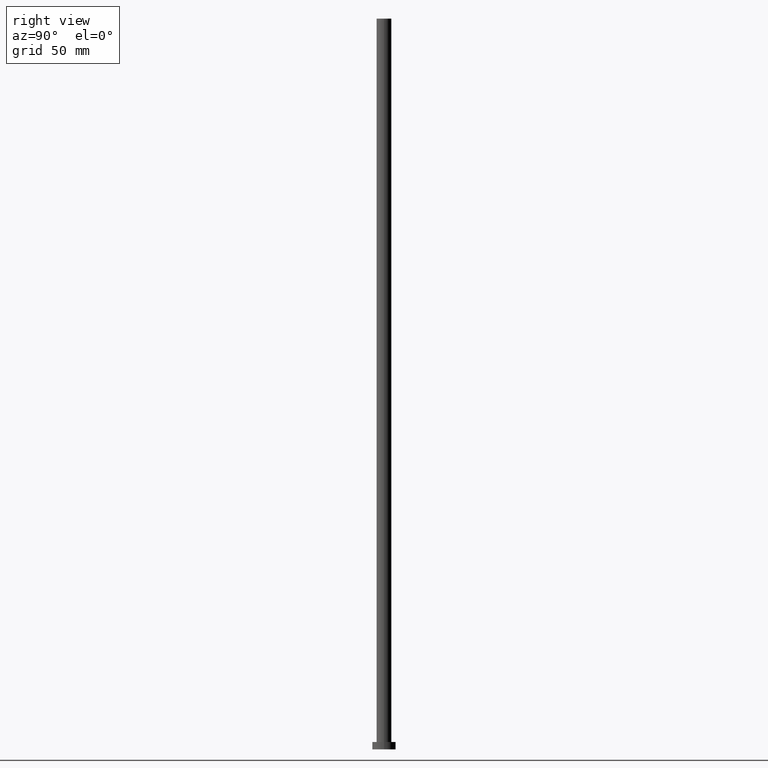
[diagram: clean part render]
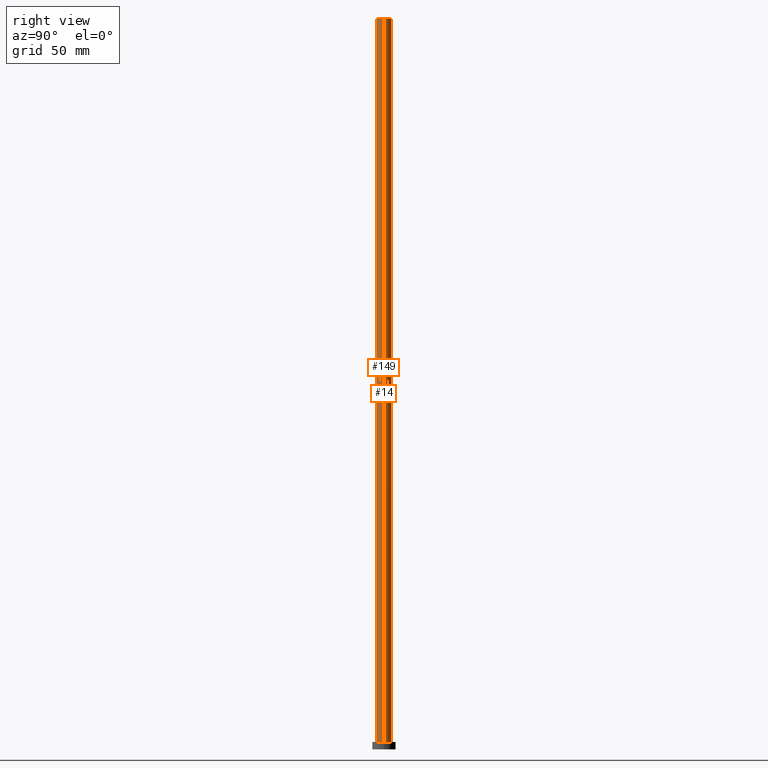
[diagram: same view with one multi-face feature highlighted, each face labeled with its STEP entity id]
A machine part, right view. The highlighted faces form ONE feature: a constant-radius fillet chain: 2 tangent blend faces with common blend radius 5.1 mm. The faces share edges in the B-rep.
Their STEP definitions:
[1] entity #149 (Cylinder):
#11 = ORIENTED_EDGE ( 'NONE', *, *, #158, .T. ) ;
#20 = EDGE_CURVE ( 'NONE', #193, #248, #155, .T. ) ;
#24 = ORIENTED_EDGE ( 'NONE', *, *, #255, .T. ) ;
#31 = ORIENTED_EDGE ( 'NONE', *, *, #20, .F. ) ;
#36 = AXIS2_PLACEMENT_3D ( 'NONE', #85, #226, #167 ) ;
#45 = VERTEX_POINT ( 'NONE', #196 ) ;
#50 = DIRECTION ( 'NONE',  ( -0.000000000000000000, -0.000000000000000000, -1.000000000000000000 ) ) ;
#61 = CYLINDRICAL_SURFACE ( 'NONE', #36, 5.100000000000001421 ) ;
#63 = EDGE_CURVE ( 'NONE', #45, #193, #252, .T. ) ;
#74 = VECTOR ( 'NONE', #50, 1000.000000000000000 ) ;
#79 = FACE_OUTER_BOUND ( 'NONE', #214, .T. ) ;
#83 = CARTESIAN_POINT ( 'NONE',  ( 0.000000000000000000, 0.000000000000000000, 5.000000000000000000 ) ) ;
#84 = CARTESIAN_POINT ( 'NONE',  ( -5.100000000000001421, 0.000000000000000000, 500.0000000000000000 ) ) ;
#85 = CARTESIAN_POINT ( 'NONE',  ( 0.000000000000000000, 0.000000000000000000, 500.0000000000000000 ) ) ;
#97 = CARTESIAN_POINT ( 'NONE',  ( 0.000000000000000000, 0.000000000000000000, 500.0000000000000000 ) ) ;
#100 = DIRECTION ( 'NONE',  ( 1.000000000000000000, 0.000000000000000000, 0.000000000000000000 ) ) ;
#104 = CARTESIAN_POINT ( 'NONE',  ( -5.100000000000001421, 0.000000000000000000, 5.000000000000000000 ) ) ;
#107 = CARTESIAN_POINT ( 'NONE',  ( 5.100000000000001421, 6.245698675651502811E-16, 500.0000000000000000 ) ) ;
#120 = CARTESIAN_POINT ( 'NONE',  ( 5.100000000000001421, 6.245698675651502811E-16, 500.0000000000000000 ) ) ;
#122 = AXIS2_PLACEMENT_3D ( 'NONE', #83, #234, #150 ) ;
#124 = CARTESIAN_POINT ( 'NONE',  ( 5.100000000000001421, 6.245698675651502811E-16, 5.000000000000000000 ) ) ;
#139 = CIRCLE ( 'NONE', #122, 5.100000000000001421 ) ;
#149 = ADVANCED_FACE ( 'NONE', ( #79 ), #61, .T. ) ;
#150 = DIRECTION ( 'NONE',  ( 1.000000000000000000, 0.000000000000000000, 0.000000000000000000 ) ) ;
#155 = LINE ( 'NONE', #120, #189 ) ;
#158 = EDGE_CURVE ( 'NONE', #229, #248, #139, .T. ) ;
#167 = DIRECTION ( 'NONE',  ( -1.000000000000000000, 0.000000000000000000, 0.000000000000000000 ) ) ;
#185 = LINE ( 'NONE', #84, #74 ) ;
#189 = VECTOR ( 'NONE', #201, 1000.000000000000000 ) ;
#192 = ORIENTED_EDGE ( 'NONE', *, *, #63, .F. ) ;
#193 = VERTEX_POINT ( 'NONE', #107 ) ;
#196 = CARTESIAN_POINT ( 'NONE',  ( -5.100000000000001421, 0.000000000000000000, 500.0000000000000000 ) ) ;
#201 = DIRECTION ( 'NONE',  ( -0.000000000000000000, -0.000000000000000000, -1.000000000000000000 ) ) ;
#214 = EDGE_LOOP ( 'NONE', ( #31, #192, #24, #11 ) ) ;
#219 = DIRECTION ( 'NONE',  ( 0.000000000000000000, 0.000000000000000000, 1.000000000000000000 ) ) ;
#226 = DIRECTION ( 'NONE',  ( -0.000000000000000000, -0.000000000000000000, -1.000000000000000000 ) ) ;
#229 = VERTEX_POINT ( 'NONE', #104 ) ;
#234 = DIRECTION ( 'NONE',  ( 0.000000000000000000, 0.000000000000000000, 1.000000000000000000 ) ) ;
#239 = AXIS2_PLACEMENT_3D ( 'NONE', #97, #219, #100 ) ;
#248 = VERTEX_POINT ( 'NONE', #124 ) ;
#252 = CIRCLE ( 'NONE', #239, 5.100000000000001421 ) ;
#255 = EDGE_CURVE ( 'NONE', #45, #229, #185, .T. ) ;
[2] entity #14 (Cylinder):
#14 = ADVANCED_FACE ( 'NONE', ( #51 ), #138, .T. ) ;
#20 = EDGE_CURVE ( 'NONE', #193, #248, #155, .T. ) ;
#26 = ORIENTED_EDGE ( 'NONE', *, *, #98, .F. ) ;
#27 = DIRECTION ( 'NONE',  ( -0.000000000000000000, -0.000000000000000000, -1.000000000000000000 ) ) ;
#45 = VERTEX_POINT ( 'NONE', #196 ) ;
#50 = DIRECTION ( 'NONE',  ( -0.000000000000000000, -0.000000000000000000, -1.000000000000000000 ) ) ;
#51 = FACE_OUTER_BOUND ( 'NONE', #76, .T. ) ;
#55 = AXIS2_PLACEMENT_3D ( 'NONE', #204, #253, #215 ) ;
#66 = DIRECTION ( 'NONE',  ( -1.000000000000000000, 0.000000000000000000, 0.000000000000000000 ) ) ;
#74 = VECTOR ( 'NONE', #50, 1000.000000000000000 ) ;
#76 = EDGE_LOOP ( 'NONE', ( #26, #242, #221, #160 ) ) ;
#84 = CARTESIAN_POINT ( 'NONE',  ( -5.100000000000001421, 0.000000000000000000, 500.0000000000000000 ) ) ;
#96 = DIRECTION ( 'NONE',  ( 0.000000000000000000, 0.000000000000000000, 1.000000000000000000 ) ) ;
#98 = EDGE_CURVE ( 'NONE', #193, #45, #183, .T. ) ;
#104 = CARTESIAN_POINT ( 'NONE',  ( -5.100000000000001421, 0.000000000000000000, 5.000000000000000000 ) ) ;
#107 = CARTESIAN_POINT ( 'NONE',  ( 5.100000000000001421, 6.245698675651502811E-16, 500.0000000000000000 ) ) ;
#120 = CARTESIAN_POINT ( 'NONE',  ( 5.100000000000001421, 6.245698675651502811E-16, 500.0000000000000000 ) ) ;
#124 = CARTESIAN_POINT ( 'NONE',  ( 5.100000000000001421, 6.245698675651502811E-16, 5.000000000000000000 ) ) ;
#137 = AXIS2_PLACEMENT_3D ( 'NONE', #232, #96, #178 ) ;
#138 = CYLINDRICAL_SURFACE ( 'NONE', #209, 5.100000000000001421 ) ;
#155 = LINE ( 'NONE', #120, #189 ) ;
#160 = ORIENTED_EDGE ( 'NONE', *, *, #255, .F. ) ;
#178 = DIRECTION ( 'NONE',  ( 1.000000000000000000, 0.000000000000000000, 0.000000000000000000 ) ) ;
#183 = CIRCLE ( 'NONE', #137, 5.100000000000001421 ) ;
#185 = LINE ( 'NONE', #84, #74 ) ;
#189 = VECTOR ( 'NONE', #201, 1000.000000000000000 ) ;
#190 = CIRCLE ( 'NONE', #55, 5.100000000000001421 ) ;
#193 = VERTEX_POINT ( 'NONE', #107 ) ;
#196 = CARTESIAN_POINT ( 'NONE',  ( -5.100000000000001421, 0.000000000000000000, 500.0000000000000000 ) ) ;
#201 = DIRECTION ( 'NONE',  ( -0.000000000000000000, -0.000000000000000000, -1.000000000000000000 ) ) ;
#204 = CARTESIAN_POINT ( 'NONE',  ( 0.000000000000000000, 0.000000000000000000, 5.000000000000000000 ) ) ;
#209 = AXIS2_PLACEMENT_3D ( 'NONE', #216, #27, #66 ) ;
#215 = DIRECTION ( 'NONE',  ( 1.000000000000000000, 0.000000000000000000, 0.000000000000000000 ) ) ;
#216 = CARTESIAN_POINT ( 'NONE',  ( 0.000000000000000000, 0.000000000000000000, 500.0000000000000000 ) ) ;
#221 = ORIENTED_EDGE ( 'NONE', *, *, #236, .T. ) ;
#229 = VERTEX_POINT ( 'NONE', #104 ) ;
#232 = CARTESIAN_POINT ( 'NONE',  ( 0.000000000000000000, 0.000000000000000000, 500.0000000000000000 ) ) ;
#236 = EDGE_CURVE ( 'NONE', #248, #229, #190, .T. ) ;
#242 = ORIENTED_EDGE ( 'NONE', *, *, #20, .T. ) ;
#248 = VERTEX_POINT ( 'NONE', #124 ) ;
#253 = DIRECTION ( 'NONE',  ( 0.000000000000000000, 0.000000000000000000, 1.000000000000000000 ) ) ;
#255 = EDGE_CURVE ( 'NONE', #45, #229, #185, .T. ) ;